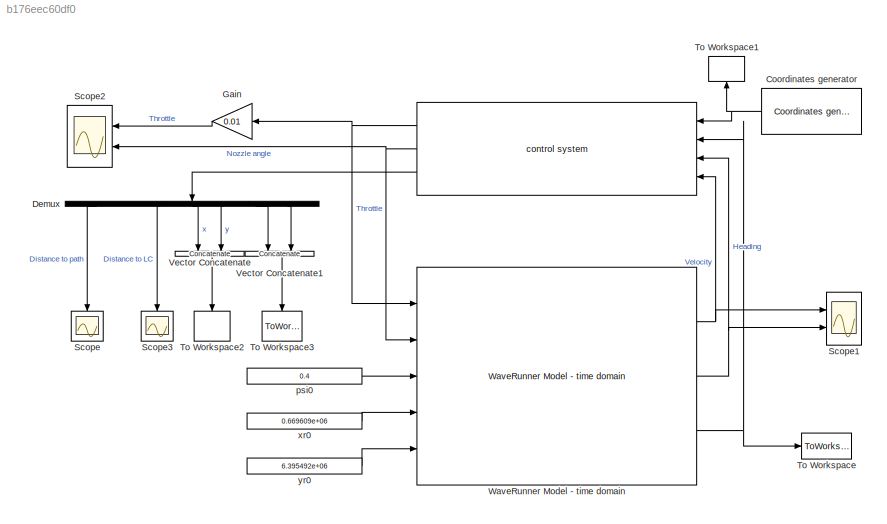
MODEL slx_b176eec60df0
KIND model
CONFIG AbsTol = auto
CONFIG EnableMultiTasking = off
CONFIG FixedStep = auto
CONFIG MaxStep = auto
CONFIG MinStep = auto
CONFIG RelTol = 1e-3
CONFIG SampleTimeConstraint = Unconstrained
CONFIG Solver = VariableStepAuto
CONFIG SolverName = VariableStepAuto
CONFIG StartTime = 0.0
CONFIG StopTime = 50
BLOCK [Reference]    REF=follow_the_leader_library/Path following // control system  (lib defined in slx_e4f700cf8551)
  Ports = [4, 3]
  SourceBlock = follow_the_leader_library/Path following // control system
  SourceProductName = Follow the leader
  SourceType = Path following / control system
BLOCK [Reference] Coordinates generator  REF=follow_the_leader_library/Coordinates generator  (lib defined in slx_e4f700cf8551)
  Ports = [0, 1]
  SourceBlock = follow_the_leader_library/Coordinates generator
  SourceProductName = Follow the leader
  SourceType = Coordinates generator
BLOCK [Demux] Demux
  DisplayOption = bar
  Outputs = 7
  Ports = [1, 7]
BLOCK [Gain] Gain
  Gain = 0.01
  OutDataTypeStr = Inherit: Inherit via internal rule
  ParamDataTypeStr = Inherit: Inherit via internal rule
  SaturateOnIntegerOverflow = off
BLOCK [Scope] Scope
  Floating = off
  NumInputPorts = 1
  Ports = [1]
  ScopeSpecificationString = Simulink.scopes.TimeScopeBlockCfg('CurrentConfiguration', extmgr.ConfigurationSet(extmgr.Configuration('Core','General UI',true,'FigureColor',[1 1 1]),extmgr.Configuration('Core','Source UI',true),extmgr.Configuration('Sources','WiredSimulink',true,'DataLoggingVariableName','ScopeData1'),extmgr.Configuration('Visuals','Time Domain',true,'SerializedDisplays',{struct('MinYLimReal','-1.00401','MaxYLi...<+1601ch>
BLOCK [Scope] Scope1
  Floating = off
  NumInputPorts = 2
  Ports = [2]
  ScopeSpecificationString = Simulink.scopes.TimeScopeBlockCfg('CurrentConfiguration', extmgr.ConfigurationSet(extmgr.Configuration('Core','General UI',true,'FigureColor',[1 1 1],'ShowStatusbar',false),extmgr.Configuration('Core','Source UI',true),extmgr.Configuration('Sources','WiredSimulink',true,'DataLoggingVariableName','ScopeData1'),extmgr.Configuration('Visuals','Time Domain',true,'SerializedDisplays',{struct('MinYLimRe...<+1714ch>
BLOCK [Scope] Scope2
  Floating = off
  NumInputPorts = 2
  Ports = [2]
  ScopeSpecificationString = Simulink.scopes.TimeScopeBlockCfg('CurrentConfiguration', extmgr.ConfigurationSet(extmgr.Configuration('Core','General UI',true,'FigureColor',[1 1 1]),extmgr.Configuration('Core','Source UI',true),extmgr.Configuration('Sources','WiredSimulink',true,'DataLoggingVariableName','ScopeData2'),extmgr.Configuration('Visuals','Time Domain',true,'SerializedDisplays',{struct('MinYLimReal','-0.36062','MaxYLi...<+1720ch>
BLOCK [Scope] Scope3
  Floating = off
  NumInputPorts = 1
  Ports = [1]
  ScopeSpecificationString = Simulink.scopes.TimeScopeBlockCfg('CurrentConfiguration', extmgr.ConfigurationSet(extmgr.Configuration('Core','General UI',true,'FigureColor',[1 1 1]),extmgr.Configuration('Core','Source UI',true),extmgr.Configuration('Sources','WiredSimulink',true,'DataLoggingVariableName','ScopeData2'),extmgr.Configuration('Visuals','Time Domain',true,'SerializedDisplays',{struct('MinYLimReal','-10.01533','MaxYL...<+1629ch>
BLOCK [ToWorkspace] To Workspace
  FixptAsFi = on
  MaxDataPoints = inf
  Ports = [1]
  SampleTime = 0.1
  Save2DSignal = 3-D array (concatenate along third dimension)
  SaveFormat = Timeseries
  VariableName = wrPos
BLOCK [ToWorkspace] To Workspace1
  FixptAsFi = on
  MaxDataPoints = inf
  Ports = [1]
  SampleTime = -1
  Save2DSignal = 3-D array (concatenate along third dimension)
  SaveFormat = Timeseries
  VariableName = coords
BLOCK [ToWorkspace] To Workspace2
  FixptAsFi = on
  MaxDataPoints = inf
  Ports = [1]
  SampleTime = 0.1
  Save2DSignal = 2-D array (concatenate along first dimension)
  SaveFormat = Timeseries
  VariableName = target
BLOCK [ToWorkspace] To Workspace3
  FixptAsFi = on
  MaxDataPoints = inf
  Ports = [1]
  SampleTime = -1
  Save2DSignal = 3-D array (concatenate along third dimension)
  SaveFormat = Timeseries
  VariableName = pred_loc
BLOCK [Concatenate] Vector Concatenate
  Ports = [2, 1]
BLOCK [Concatenate] Vector Concatenate1
  Ports = [2, 1]
BLOCK [Reference] WaveRunner Model - time domain  REF=follow_the_leader_library/WaveRunner Model - time domain  (lib defined in slx_e4f700cf8551)
  Ports = [5, 3]
  SourceBlock = follow_the_leader_library/WaveRunner Model - time domain
  SourceProductName = Follow the leader
BLOCK [Constant] psi0
  Value = 0.4
BLOCK [Constant] xr0
  Value = 0.669609e+06
BLOCK [Constant] yr0
  Value = 6.395492e+06
NET  :1 -> Gain:1, WaveRunner Model - time domain:1
NET  :2 -> Scope2:2, WaveRunner Model - time domain:2
LINE  :3 -> Demux:1
NET Coordinates generator:1 ->  :1, To Workspace1:1
LINE Demux:1 -> Scope:1
LINE Demux:3 -> Scope3:1
LINE Demux:4 -> Vector Concatenate:1
LINE Demux:5 -> Vector Concatenate:2
LINE Demux:6 -> Vector Concatenate1:1
LINE Demux:7 -> Vector Concatenate1:2
LINE Gain:1 -> Scope2:1
LINE Vector Concatenate1:1 -> To Workspace3:1
LINE Vector Concatenate:1 -> To Workspace2:1
NET WaveRunner Model - time domain:1 ->  :4, Scope1:1
NET WaveRunner Model - time domain:2 ->  :3, Scope1:2
NET WaveRunner Model - time domain:3 ->  :2, To Workspace:1
LINE psi0:1 -> WaveRunner Model - time domain:3
LINE xr0:1 -> WaveRunner Model - time domain:4
LINE yr0:1 -> WaveRunner Model - time domain:5
note: NET lines group one-source signal fan-out (src -> all destinations, sorted); 1:1 wires keep LINE
